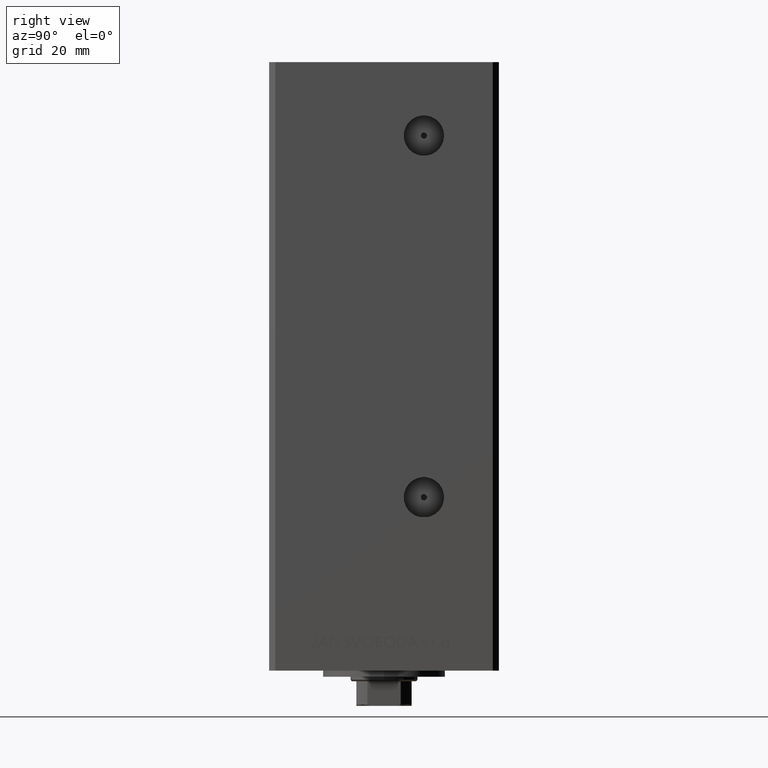
[diagram: clean part render]
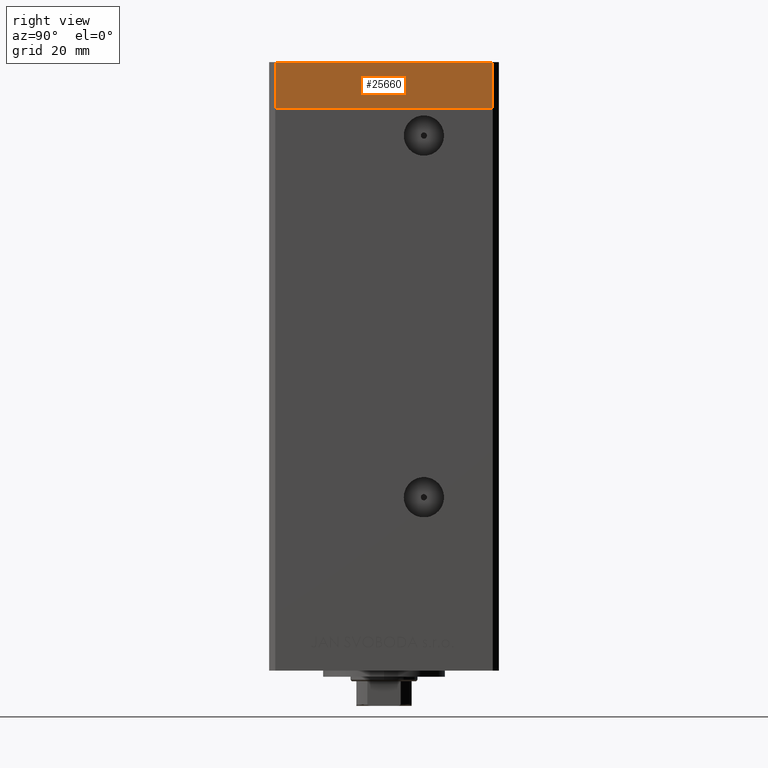
[diagram: same view with one face highlighted and labeled with its STEP entity id]
A machine part, right view. The second image highlights one B-rep face of the part: STEP entity #25660.
In plain terms, the highlighted planar face has unit normal (1, 0, 0).
Its self-contained STEP definition (entity closure, byte-faithful):
#62 = EDGE_CURVE ( 'NONE', #6379, #48271, #28438, .T. ) ;
#1244 = EDGE_CURVE ( 'NONE', #24022, #38318, #29329, .T. ) ;
#1275 = CARTESIAN_POINT ( 'NONE',  ( 42.49999999999992895, 35.50000000000000000, 0.000000000000000000 ) ) ;
#2003 = CARTESIAN_POINT ( 'NONE',  ( 42.49999999999992895, 35.50000000000000000, -15.00000000000000000 ) ) ;
#2033 = CARTESIAN_POINT ( 'NONE',  ( 42.50000000000000711, -35.50000000000000000, 0.000000000000000000 ) ) ;
#2249 = CARTESIAN_POINT ( 'NONE',  ( 42.50000000000000711, -35.50000000000000000, -15.00000000000000000 ) ) ;
#3304 = ORIENTED_EDGE ( 'NONE', *, *, #16032, .T. ) ;
#5989 = DIRECTION ( 'NONE',  ( 0.000000000000000000, 0.000000000000000000, 1.000000000000000000 ) ) ;
#6379 = VERTEX_POINT ( 'NONE', #14856 ) ;
#6860 = DIRECTION ( 'NONE',  ( 0.000000000000000000, 0.000000000000000000, 1.000000000000000000 ) ) ;
#7156 = VECTOR ( 'NONE', #6860, 1000.000000000000000 ) ;
#7973 = ORIENTED_EDGE ( 'NONE', *, *, #38137, .F. ) ;
#8343 = VECTOR ( 'NONE', #25433, 1000.000000000000000 ) ;
#8874 = PLANE ( 'NONE',  #30916 ) ;
#10448 = LINE ( 'NONE', #2003, #49026 ) ;
#14020 = CARTESIAN_POINT ( 'NONE',  ( 42.49999999999992895, 35.50000000000000000, -15.00000000000000000 ) ) ;
#14856 = CARTESIAN_POINT ( 'NONE',  ( 42.50000000000000711, -35.50000000000000000, 0.000000000000000000 ) ) ;
#16032 = EDGE_CURVE ( 'NONE', #38318, #48271, #10448, .T. ) ;
#17601 = ORIENTED_EDGE ( 'NONE', *, *, #1244, .T. ) ;
#21906 = VECTOR ( 'NONE', #37059, 1000.000000000000000 ) ;
#24022 = VERTEX_POINT ( 'NONE', #2249 ) ;
#25433 = DIRECTION ( 'NONE',  ( -1.172770800660376741E-15, 1.000000000000000000, 0.000000000000000000 ) ) ;
#25660 = ADVANCED_FACE ( 'NONE', ( #27794 ), #8874, .T. ) ;
#27794 = FACE_OUTER_BOUND ( 'NONE', #43438, .T. ) ;
#28438 = LINE ( 'NONE', #2033, #8343 ) ;
#29329 = LINE ( 'NONE', #49023, #21906 ) ;
#30916 = AXIS2_PLACEMENT_3D ( 'NONE', #46727, #31299, #35027 ) ;
#31299 = DIRECTION ( 'NONE',  ( 1.000000000000000000, 1.172770800660376741E-15, -0.000000000000000000 ) ) ;
#35027 = DIRECTION ( 'NONE',  ( -1.172770800660376741E-15, 1.000000000000000000, 0.000000000000000000 ) ) ;
#37059 = DIRECTION ( 'NONE',  ( -1.172770800660376741E-15, 1.000000000000000000, 0.000000000000000000 ) ) ;
#38137 = EDGE_CURVE ( 'NONE', #24022, #6379, #40979, .T. ) ;
#38318 = VERTEX_POINT ( 'NONE', #14020 ) ;
#40231 = ORIENTED_EDGE ( 'NONE', *, *, #62, .F. ) ;
#40979 = LINE ( 'NONE', #48703, #7156 ) ;
#43438 = EDGE_LOOP ( 'NONE', ( #40231, #7973, #17601, #3304 ) ) ;
#46727 = CARTESIAN_POINT ( 'NONE',  ( 42.50000000000000711, -35.50000000000000000, -15.00000000000000000 ) ) ;
#48271 = VERTEX_POINT ( 'NONE', #1275 ) ;
#48703 = CARTESIAN_POINT ( 'NONE',  ( 42.50000000000000711, -35.50000000000000000, -15.00000000000000000 ) ) ;
#49023 = CARTESIAN_POINT ( 'NONE',  ( 42.50000000000000711, -35.50000000000000000, -15.00000000000000000 ) ) ;
#49026 = VECTOR ( 'NONE', #5989, 1000.000000000000000 ) ;